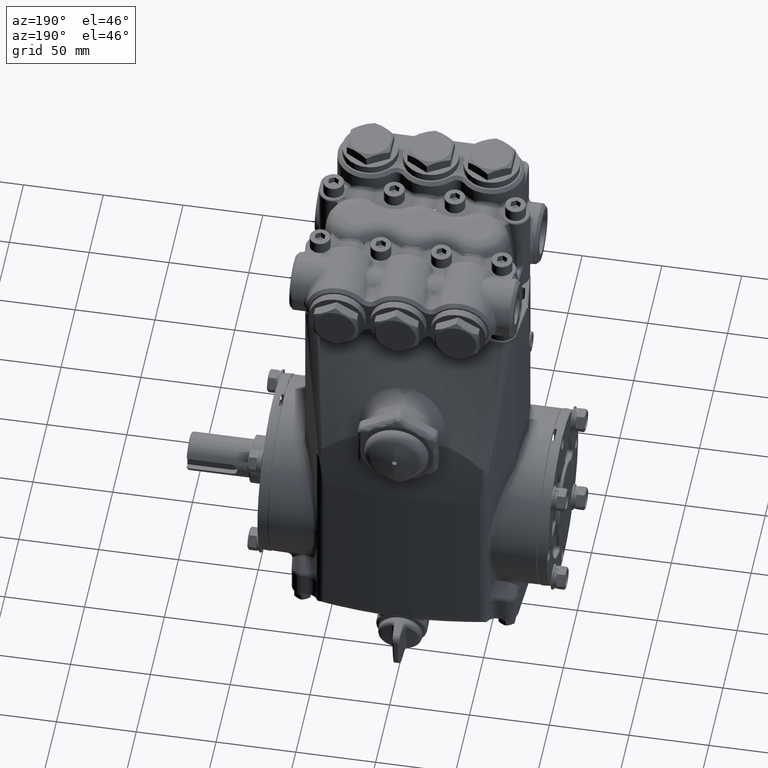
[diagram: clean part render]
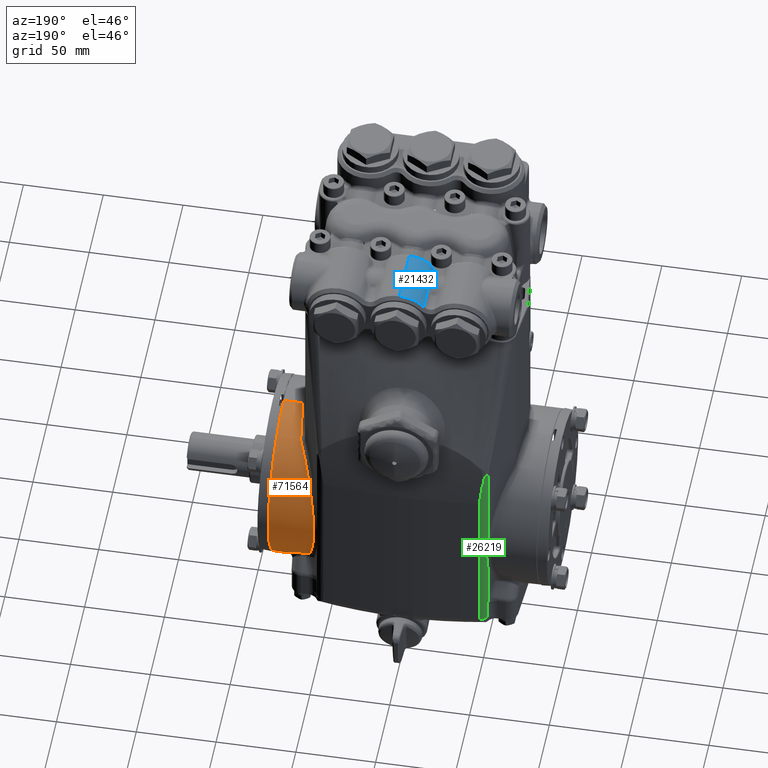
[diagram: same view with three faces highlighted in distinct colors, each labeled with its STEP entity id]
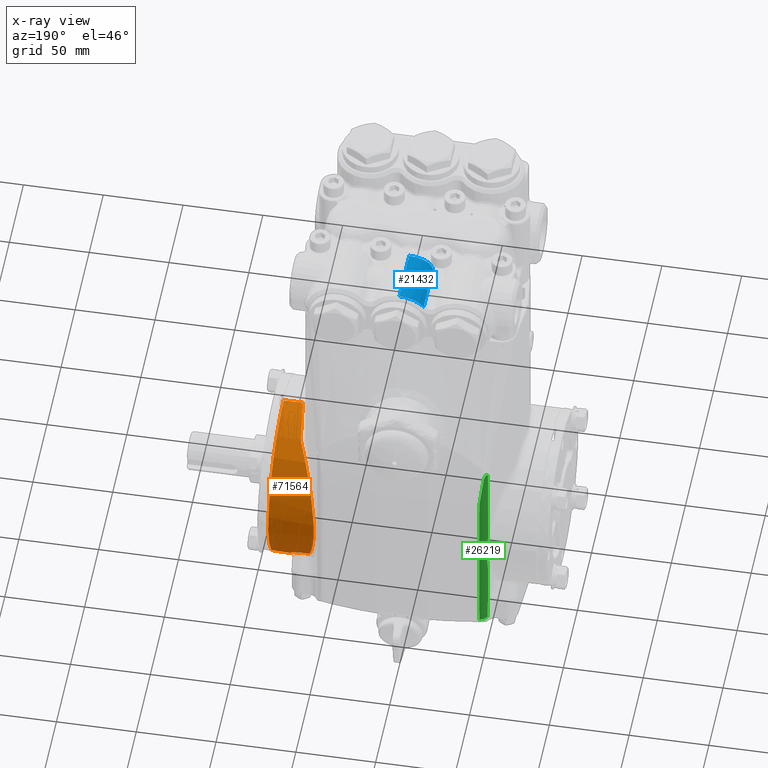
[diagram: x-ray of the same camera — body ghosted, the three highlighted faces saturated]
A machine part, auxiliary view with three faces highlighted in distinct colors.
The next image is the same camera in x-ray (body ghosted, the three faces saturated) — at least one of them is partly hidden behind the body in this view.
Their STEP definitions:

[orange] entity #71564 — the highlighted cylindrical surface (partial cylindrical patch) has radius 55 mm, axis along (1, -0, -0).
#38 = CARTESIAN_POINT ( 'NONE',  ( 3.001132935298741256, 0.006984045161048439698, -2.165345869940062062 ) ) ;
#232 = CARTESIAN_POINT ( 'NONE',  ( 2.699836573358002312, 1.036775677710985333, 1.901014353345519270 ) ) ;
#599 = EDGE_CURVE ( 'NONE', #85340, #52462, #86677, .T. ) ;
#951 = CARTESIAN_POINT ( 'NONE',  ( 2.699836573358002312, 1.036775677710985333, 1.901014353345519270 ) ) ;
#1635 = B_SPLINE_CURVE_WITH_KNOTS ( 'NONE', 3,
 ( #45546, #38, #66682, #102696 ),
 .UNSPECIFIED., .F., .F.,
 ( 4, 4 ),
 ( 2.547875105340935420E-18, 0.0002660209736205815679 ),
 .UNSPECIFIED. ) ;
#3262 = EDGE_CURVE ( 'NONE', #52462, #115533, #96984, .T. ) ;
#5080 = VERTEX_POINT ( 'NONE', #73179 ) ;
#5436 = CARTESIAN_POINT ( 'NONE',  ( 2.996620088869630827, 0.3358538298913014142, -2.139656249712679870 ) ) ;
#5470 = CARTESIAN_POINT ( 'NONE',  ( 2.714262431508347451, 0.9853388122601114407, 1.928177067225048225 ) ) ;
#5573 = ORIENTED_EDGE ( 'NONE', *, *, #91231, .F. ) ;
#5740 = CARTESIAN_POINT ( 'NONE',  ( 2.666696451043287563, 1.806973173080999251, -1.193160169334844589 ) ) ;
#6341 = CARTESIAN_POINT ( 'NONE',  ( 2.903593194520122100, 1.652876374660746661, -1.398892119377336041 ) ) ;
#6786 = CARTESIAN_POINT ( 'NONE',  ( 2.224920720426668552, 2.093148554814857842, 0.5545164605268523283 ) ) ;
#6943 = CARTESIAN_POINT ( 'NONE',  ( 2.915934412661236319, 1.621165426257023201, -1.435678530815410969 ) ) ;
#7573 = CARTESIAN_POINT ( 'NONE',  ( 2.920714650841377935, 1.587600093807528978, -1.472509870819574740 ) ) ;
#7665 = CARTESIAN_POINT ( 'NONE',  ( 2.334813571937218946, 1.852837202116557558, -1.120652135000211214 ) ) ;
#8404 = ORIENTED_EDGE ( 'NONE', *, *, #61658, .F. ) ;
#9927 = CYLINDRICAL_SURFACE ( 'NONE', #11624, 2.165354330708661568 ) ;
#10014 = VERTEX_POINT ( 'NONE', #76329 ) ;
#10378 = CARTESIAN_POINT ( 'NONE',  ( 2.247783690399701495, 2.042293606048640964, -0.7464800361690671071 ) ) ;
#11131 = ORIENTED_EDGE ( 'NONE', *, *, #17741, .F. ) ;
#11624 = AXIS2_PLACEMENT_3D ( 'NONE', #38829, #107915, #21820 ) ;
#12224 = CARTESIAN_POINT ( 'NONE',  ( 3.000905191768266089, 0.01046765692728673057, -2.165329029426523277 ) ) ;
#13058 = LINE ( 'NONE', #119220, #43264 ) ;
#13274 = CARTESIAN_POINT ( 'NONE',  ( 2.920714650841377935, 1.587600093807528978, -1.472509870819574740 ) ) ;
#13887 = CARTESIAN_POINT ( 'NONE',  ( 2.834916132250326903, -8.553836053367910872E-13, 2.165354330708661568 ) ) ;
#14270 = ORIENTED_EDGE ( 'NONE', *, *, #66631, .T. ) ;
#14403 = CARTESIAN_POINT ( 'NONE',  ( 2.834916132250326903, -8.553836053367910872E-13, 2.165354330708661568 ) ) ;
#14951 = ORIENTED_EDGE ( 'NONE', *, *, #21219, .F. ) ;
#16228 = CARTESIAN_POINT ( 'NONE',  ( 2.214137029036238324, 2.117135117970423863, 0.4639737199988274163 ) ) ;
#16826 = CARTESIAN_POINT ( 'NONE',  ( 2.180581225541741830, 2.165308281435589066, 0.04901070734122809497 ) ) ;
#16984 = CARTESIAN_POINT ( 'NONE',  ( 2.875645456564244640, 1.696808674284081775, -1.345404253422435081 ) ) ;
#17741 = EDGE_CURVE ( 'NONE', #115533, #53427, #86802, .T. ) ;
#18708 = CARTESIAN_POINT ( 'NONE',  ( 2.202693561820952439, 2.135036624589259802, 0.3728106239869881100 ) ) ;
#20185 = ORIENTED_EDGE ( 'NONE', *, *, #31273, .F. ) ;
#21219 = EDGE_CURVE ( 'NONE', #5080, #60437, #96821, .T. ) ;
#21820 = DIRECTION ( 'NONE',  ( 0.000000000000000000, 0.000000000000000000, 1.000000000000000000 ) ) ;
#23448 = LINE ( 'NONE', #108301, #109493 ) ;
#23588 = CARTESIAN_POINT ( 'NONE',  ( 2.699836573358002312, 1.036775677710985333, 1.901014353345519270 ) ) ;
#25299 = CARTESIAN_POINT ( 'NONE',  ( 2.374685763242076586, 1.829236654641229309, -1.158732504851491818 ) ) ;
#25527 = CARTESIAN_POINT ( 'NONE',  ( 2.996615589479274977, 0.4731062516763475112, -2.113551596670201427 ) ) ;
#25815 = CARTESIAN_POINT ( 'NONE',  ( 2.842123480178768258, 1.728912408571944503, -1.303736053716292531 ) ) ;
#26433 = CARTESIAN_POINT ( 'NONE',  ( 2.582376196092895704, 1.819240064059689299, -1.174372134108272236 ) ) ;
#26522 = CARTESIAN_POINT ( 'NONE',  ( 2.344246016133761046, 1.844723699014530816, -1.133922719474339980 ) ) ;
#26891 = CARTESIAN_POINT ( 'NONE',  ( 2.182914079590751122, 2.162387231284902622, -0.1157406669298135377 ) ) ;
#27363 = EDGE_CURVE ( 'NONE', #77119, #39141, #69695, .T. ) ;
#28145 = CARTESIAN_POINT ( 'NONE',  ( 2.202600983985220306, 2.135186560717966309, -0.3721468128045957169 ) ) ;
#28581 = ORIENTED_EDGE ( 'NONE', *, *, #72539, .F. ) ;
#29030 = ORIENTED_EDGE ( 'NONE', *, *, #27363, .F. ) ;
#29230 = CARTESIAN_POINT ( 'NONE',  ( 2.224920720426668996, 2.093148554814857842, -0.5545164605268522173 ) ) ;
#31273 = EDGE_CURVE ( 'NONE', #39141, #73210, #48234, .T. ) ;
#32413 = CARTESIAN_POINT ( 'NONE',  ( 2.833573044147181808, 0.02176847656630910219, 2.165244907844546152 ) ) ;
#33024 = CARTESIAN_POINT ( 'NONE',  ( 2.707236426691661535, 1.020315910558582173, 1.909991185221792120 ) ) ;
#34392 = CARTESIAN_POINT ( 'NONE',  ( 2.751391105441370222, 0.6854820936121004404, 2.081410122437167054 ) ) ;
#34650 = CARTESIAN_POINT ( 'NONE',  ( 2.895476968579367760, 1.668070233648332623, -1.380739355267364132 ) ) ;
#35350 = CARTESIAN_POINT ( 'NONE',  ( 2.408079295826049737, 1.821645022111501921, -1.170634117865167800 ) ) ;
#35552 = EDGE_CURVE ( 'NONE', #46220, #5080, #119132, .T. ) ;
#37360 =( BOUNDED_CURVE ( )  B_SPLINE_CURVE ( 3, ( #232, #87573, #39841, #95149 ),
 .UNSPECIFIED., .F., .F. ) 
 B_SPLINE_CURVE_WITH_KNOTS ( ( 4, 4 ),
 ( 2.070085784874226231, 2.882621878166205853 ),
 .UNSPECIFIED. ) 
 CURVE ( )  GEOMETRIC_REPRESENTATION_ITEM ( )  RATIONAL_B_SPLINE_CURVE ( ( 1.000000000000000000, 0.9457346828002772821, 0.9457346828002772821, 1.000000000000000000 ) ) 
 REPRESENTATION_ITEM ( '' )  );
#37907 = AXIS2_PLACEMENT_3D ( 'NONE', #80583, #118871, #109460 ) ;
#38196 = CARTESIAN_POINT ( 'NONE',  ( 2.180526785268474210, 2.165375858866640968, -0.02138746709008351038 ) ) ;
#38829 = CARTESIAN_POINT ( 'NONE',  ( -19685.03937007874265, 0.000000000000000000, 0.000000000000000000 ) ) ;
#39141 = VERTEX_POINT ( 'NONE', #86478 ) ;
#39841 = CARTESIAN_POINT ( 'NONE',  ( 2.294367569176432475, 1.938675363477264213, 1.137610670027403570 ) ) ;
#41358 = CARTESIAN_POINT ( 'NONE',  ( 2.940181541919657082, 1.309273501592581157, -1.772590252395337407 ) ) ;
#41737 = DIRECTION ( 'NONE',  ( 1.000000000000000000, -0.000000000000000000, -0.000000000000000000 ) ) ;
#42166 = CARTESIAN_POINT ( 'NONE',  ( 2.224920720426668552, 2.093148554814857842, 0.5545164605268523283 ) ) ;
#43264 = VECTOR ( 'NONE', #82166, 39.37007874015748143 ) ;
#43823 = CARTESIAN_POINT ( 'NONE',  ( 2.995616580941062423, 0.2435827851895652763, -2.152113865190802056 ) ) ;
#43988 = CARTESIAN_POINT ( 'NONE',  ( 2.834916132250361986, 0.007256158854866113193, 2.165354330708664232 ) ) ;
#44724 = CARTESIAN_POINT ( 'NONE',  ( 2.818533017741007729, 1.746310629392774150, -1.280332060359319568 ) ) ;
#44812 = CARTESIAN_POINT ( 'NONE',  ( 2.385249461896747025, 1.826132136985539889, -1.163618998964428775 ) ) ;
#45340 = CARTESIAN_POINT ( 'NONE',  ( 2.654874561816855660, 1.809369689380805113, -1.189518673336169563 ) ) ;
#45546 = CARTESIAN_POINT ( 'NONE',  ( 3.000905191768266089, 0.01046765692728673057, -2.165329029426523277 ) ) ;
#46050 = CARTESIAN_POINT ( 'NONE',  ( 2.420029408679309491, 1.820616516430447751, -1.172226461746846082 ) ) ;
#46220 = VERTEX_POINT ( 'NONE', #42166 ) ;
#46484 = ORIENTED_EDGE ( 'NONE', *, *, #108608, .F. ) ;
#48234 = B_SPLINE_CURVE_WITH_KNOTS ( 'NONE', 3,
 ( #63806, #100878, #33024, #23588 ),
 .UNSPECIFIED., .F., .F.,
 ( 4, 4 ),
 ( 3.469446951953614189E-18, 0.001522235697223477992 ),
 .UNSPECIFIED. ) ;
#52462 = VERTEX_POINT ( 'NONE', #13274 ) ;
#53270 = CARTESIAN_POINT ( 'NONE',  ( 2.791879429211051811, 0.3584923408687987201, 2.161859625411683528 ) ) ;
#53427 = VERTEX_POINT ( 'NONE', #12224 ) ;
#53538 = CARTESIAN_POINT ( 'NONE',  ( 2.630949183802644420, 1.813465316359295310, -1.183265352077683241 ) ) ;
#55213 = CARTESIAN_POINT ( 'NONE',  ( 2.182010245614104615, 2.163523631875809095, -0.09209756802802643305 ) ) ;
#55371 = CARTESIAN_POINT ( 'NONE',  ( 2.919519453647200891, 1.604688346922567899, -1.454086013169413993 ) ) ;
#60266 = VERTEX_POINT ( 'NONE', #84718 ) ;
#60437 = VERTEX_POINT ( 'NONE', #67717 ) ;
#60815 = CARTESIAN_POINT ( 'NONE',  ( 2.920714650841377935, 1.587600093807528978, -1.472509870819574740 ) ) ;
#61658 = EDGE_CURVE ( 'NONE', #84892, #77119, #76427, .T. ) ;
#62334 = CARTESIAN_POINT ( 'NONE',  ( 2.863472108935826377, 1.710160163005832956, -1.328358890287677729 ) ) ;
#63606 = EDGE_CURVE ( 'NONE', #115029, #85340, #111833, .T. ) ;
#63806 = CARTESIAN_POINT ( 'NONE',  ( 2.714262431508347451, 0.9853388122601114407, 1.928177067225048225 ) ) ;
#64142 = EDGE_CURVE ( 'NONE', #60266, #10014, #23448, .T. ) ;
#64179 = CARTESIAN_POINT ( 'NONE',  ( 2.618882594685502774, 1.815162649067177503, -1.180656669223874244 ) ) ;
#64575 = CARTESIAN_POINT ( 'NONE',  ( 2.432232454864653448, 1.820616516430446419, -1.172226461746799897 ) ) ;
#64787 = CARTESIAN_POINT ( 'NONE',  ( 2.810137086962422259, 1.751715151741702448, -1.272921970510207723 ) ) ;
#65505 = CARTESIAN_POINT ( 'NONE',  ( 2.327612382700216642, 1.864727696549315805, -1.100704317807756016 ) ) ;
#66499 = CARTESIAN_POINT ( 'NONE',  ( 2.190071999432462224, 2.153086051259655243, 0.2348026329366685871 ) ) ;
#66631 = EDGE_CURVE ( 'NONE', #84892, #93418, #13058, .T. ) ;
#66682 = CARTESIAN_POINT ( 'NONE',  ( 3.001247000493426853, 0.003491088892603810574, -2.165354330708661568 ) ) ;
#67288 = EDGE_CURVE ( 'NONE', #73210, #46220, #37360, .T. ) ;
#67717 = CARTESIAN_POINT ( 'NONE',  ( 2.327612382700216642, 1.864727696549315805, -1.100704317807756016 ) ) ;
#68439 = CARTESIAN_POINT ( 'NONE',  ( 2.992327056910538907, 0.5637264376050651338, -2.090686939994570004 ) ) ;
#69695 =( BOUNDED_CURVE ( )  B_SPLINE_CURVE ( 3, ( #80894, #53270, #34392, #5470 ),
 .UNSPECIFIED., .F., .F. ) 
 B_SPLINE_CURVE_WITH_KNOTS ( ( 4, 4 ),
 ( 1.580849574406080205, 2.043221746822086349 ),
 .UNSPECIFIED. ) 
 CURVE ( )  GEOMETRIC_REPRESENTATION_ITEM ( )  RATIONAL_B_SPLINE_CURVE ( ( 1.000000000000000000, 0.9822635394635154116, 0.9822635394635154116, 1.000000000000000000 ) ) 
 REPRESENTATION_ITEM ( '' )  );
#71453 = CARTESIAN_POINT ( 'NONE',  ( 3.000905191768266089, 0.01046765692728673057, -2.165329029426523277 ) ) ;
#71562 = CARTESIAN_POINT ( 'NONE',  ( 2.532464889193351887, 1.820616516430446863, -1.172226461746799009 ) ) ;
#71564 = ADVANCED_FACE ( 'NONE', ( #117317 ), #9927, .T. ) ;
#71682 = DIRECTION ( 'NONE',  ( 1.000000000000000000, -0.000000000000000000, -0.000000000000000000 ) ) ;
#71752 = CARTESIAN_POINT ( 'NONE',  ( 2.792530616634989471, 1.761970238058271576, -1.258688681146406863 ) ) ;
#71836 = CARTESIAN_POINT ( 'NONE',  ( 3.307086614166640182, 0.000000000000000000, 2.165354330708661568 ) ) ;
#72539 = EDGE_CURVE ( 'NONE', #10014, #93418, #118170, .T. ) ;
#72737 = ORIENTED_EDGE ( 'NONE', *, *, #35552, .F. ) ;
#73179 = CARTESIAN_POINT ( 'NONE',  ( 2.224920720426668996, 2.093148554814857842, -0.5545164605268522173 ) ) ;
#73210 = VERTEX_POINT ( 'NONE', #951 ) ;
#73292 = VECTOR ( 'NONE', #71682, 39.37007874015748143 ) ;
#74321 = CARTESIAN_POINT ( 'NONE',  ( 2.330330887586870237, 1.858680825696717331, -1.110948456377815363 ) ) ;
#76329 = CARTESIAN_POINT ( 'NONE',  ( 3.307086614166640182, -2.651794250122221246E-16, -2.165354330708661568 ) ) ;
#76427 = B_SPLINE_CURVE_WITH_KNOTS ( 'NONE', 3,
 ( #14403, #43988, #91702, #110533 ),
 .UNSPECIFIED., .F., .F.,
 ( 4, 4 ),
 ( 0.0005529193047624394834, 0.001105838609568417490 ),
 .UNSPECIFIED. ) ;
#76547 = CARTESIAN_POINT ( 'NONE',  ( 2.186613352208861993, 2.157628379374275429, 0.1885892275417958008 ) ) ;
#77119 = VERTEX_POINT ( 'NONE', #32413 ) ;
#78859 = CARTESIAN_POINT ( 'NONE',  ( 2.327612382700216642, 1.864727696549315805, -1.100704317807756016 ) ) ;
#79267 = EDGE_LOOP ( 'NONE', ( #82015, #5573, #11131, #106538, #96187, #92378, #46484, #14951, #72737, #106774, #20185, #29030, #8404, #14270, #28581 ) ) ;
#79486 = CARTESIAN_POINT ( 'NONE',  ( 2.282229834916867706, 1.965673774210779490, -0.9296893196579598673 ) ) ;
#80583 = CARTESIAN_POINT ( 'NONE',  ( 3.307086614166640182, 0.000000000000000000, 0.000000000000000000 ) ) ;
#80877 = CARTESIAN_POINT ( 'NONE',  ( 2.992327056910538907, 0.5637264376050651338, -2.090686939994570004 ) ) ;
#80894 = CARTESIAN_POINT ( 'NONE',  ( 2.833573044147181808, 0.02176847656630910219, 2.165244907844546152 ) ) ;
#82015 = ORIENTED_EDGE ( 'NONE', *, *, #64142, .F. ) ;
#82166 = DIRECTION ( 'NONE',  ( 1.000000000000000000, -0.000000000000000000, -0.000000000000000000 ) ) ;
#82407 = CARTESIAN_POINT ( 'NONE',  ( 2.722920638537827731, 1.792222520854177104, -1.215275574371438516 ) ) ;
#82716 = CARTESIAN_POINT ( 'NONE',  ( 2.995487386928054274, 0.5185418274592423771, -2.102870380195392297 ) ) ;
#83625 = CARTESIAN_POINT ( 'NONE',  ( 2.701115141882145299, 1.798870862651447133, -1.205370664415323700 ) ) ;
#84256 = CARTESIAN_POINT ( 'NONE',  ( 2.557632326301072734, 1.820616516430408671, -1.172226461746761927 ) ) ;
#84349 = CARTESIAN_POINT ( 'NONE',  ( 2.432232454864653448, 1.820616516430446419, -1.172226461746799897 ) ) ;
#84718 = CARTESIAN_POINT ( 'NONE',  ( 3.001247000493425965, -5.474055705097304527E-14, -2.165354330708661568 ) ) ;
#84721 = CARTESIAN_POINT ( 'NONE',  ( 2.180817177939173401, 2.165017101369969499, -0.04491568208714365185 ) ) ;
#84892 = VERTEX_POINT ( 'NONE', #13887 ) ;
#85340 = VERTEX_POINT ( 'NONE', #71562 ) ;
#85592 = CARTESIAN_POINT ( 'NONE',  ( 2.355791910466821015, 1.837328447188444569, -1.145863962184987095 ) ) ;
#85963 = CARTESIAN_POINT ( 'NONE',  ( 2.214111242110439193, 2.117192476782161936, -0.4637572061125144751 ) ) ;
#86478 = CARTESIAN_POINT ( 'NONE',  ( 2.714262431508347451, 0.9853388122601114407, 1.928177067225048225 ) ) ;
#86677 = B_SPLINE_CURVE_WITH_KNOTS ( 'NONE', 3,
 ( #92448, #84256, #26433, #64179, #53538, #45340, #5740, #83625, #82407, #111894, #121322, #121945, #71752, #64787, #44724, #120714, #25815, #62334, #16984, #110668, #34650, #6341, #100646, #6943, #55371, #7573 ),
 .UNSPECIFIED., .F., .F.,
 ( 4, 2, 2, 2, 2, 2, 2, 2, 2, 2, 2, 2, 4 ),
 ( 0.000000000000000000, 0.001891821109857257316, 0.002837731664785884782, 0.003783642219714512030, 0.005675463329571802523, 0.006621373884500461431, 0.007567284439429121205, 0.008513194994357780113, 0.009459105549286438153, 0.01135092665914376811, 0.01229683721407244003, 0.01324274776900111195, 0.01513456887885848180 ),
 .UNSPECIFIED. ) ;
#86802 = B_SPLINE_CURVE_WITH_KNOTS ( 'NONE', 3,
 ( #111603, #82716, #25527, #119793, #5436, #43823, #110369, #119164, #90297, #71453 ),
 .UNSPECIFIED., .F., .F.,
 ( 4, 2, 2, 2, 4 ),
 ( 0.000000000000000000, 0.003546287326658007465, 0.007092574653316014929, 0.01063886197997401979, 0.01418514930663202118 ),
 .UNSPECIFIED. ) ;
#87573 = CARTESIAN_POINT ( 'NONE',  ( 2.461756253539471029, 1.566346528792579962, 1.612196871741579773 ) ) ;
#87835 = CARTESIAN_POINT ( 'NONE',  ( 2.964687734594000812, 0.9588978268965991925, -1.984134134183584752 ) ) ;
#90297 = CARTESIAN_POINT ( 'NONE',  ( 2.997849561794700968, 0.05720719989911267345, -2.165103080624237286 ) ) ;
#91231 = EDGE_CURVE ( 'NONE', #53427, #60266, #1635, .T. ) ;
#91702 = CARTESIAN_POINT ( 'NONE',  ( 2.834471511779911523, 0.01451231771058760812, 2.165317858263889228 ) ) ;
#92378 = ORIENTED_EDGE ( 'NONE', *, *, #63606, .F. ) ;
#92448 = CARTESIAN_POINT ( 'NONE',  ( 2.532464889193351887, 1.820616516430446863, -1.172226461746799009 ) ) ;
#93418 = VERTEX_POINT ( 'NONE', #71836 ) ;
#93511 = CARTESIAN_POINT ( 'NONE',  ( 2.186450764309912476, 2.157841920206465591, -0.1862736558526659481 ) ) ;
#94134 = CARTESIAN_POINT ( 'NONE',  ( 2.181865193312993334, 2.163739559798199430, 0.09569345636149928502 ) ) ;
#95000 = CARTESIAN_POINT ( 'NONE',  ( 2.347859870804390070, 1.842123431487330043, -1.138139405278453919 ) ) ;
#95149 = CARTESIAN_POINT ( 'NONE',  ( 2.224920720426668552, 2.093148554814857842, 0.5545164605268523283 ) ) ;
#96187 = ORIENTED_EDGE ( 'NONE', *, *, #599, .F. ) ;
#96821 =( BOUNDED_CURVE ( )  B_SPLINE_CURVE ( 3, ( #29230, #10378, #79486, #78859 ),
 .UNSPECIFIED., .F., .F. ) 
 B_SPLINE_CURVE_WITH_KNOTS ( ( 4, 4 ),
 ( 3.400563429013380379, 3.674831595706583798 ),
 .UNSPECIFIED. ) 
 CURVE ( )  GEOMETRIC_REPRESENTATION_ITEM ( )  RATIONAL_B_SPLINE_CURVE ( ( 1.000000000000000000, 0.9937412320302076996, 0.9937412320302076996, 1.000000000000000000 ) ) 
 REPRESENTATION_ITEM ( '' )  );
#96984 =( BOUNDED_CURVE ( )  B_SPLINE_CURVE ( 3, ( #60815, #41358, #87835, #80877 ),
 .UNSPECIFIED., .F., .F. ) 
 B_SPLINE_CURVE_WITH_KNOTS ( ( 4, 4 ),
 ( 3.889398702551730924, 4.449015564267806866 ),
 .UNSPECIFIED. ) 
 CURVE ( )  GEOMETRIC_REPRESENTATION_ITEM ( )  RATIONAL_B_SPLINE_CURVE ( ( 1.000000000000000000, 0.9740722412601059421, 0.9740722412601059421, 1.000000000000000000 ) ) 
 REPRESENTATION_ITEM ( '' )  );
#99950 = CARTESIAN_POINT ( 'NONE',  ( -19685.03937007874265, 1.820616516430447085, -1.172226461746799009 ) ) ;
#100646 = CARTESIAN_POINT ( 'NONE',  ( 2.907126062173174486, 1.645029633680164860, -1.408113838877049329 ) ) ;
#100878 = CARTESIAN_POINT ( 'NONE',  ( 2.712053289720472993, 1.003180171440650970, 1.919059759503227269 ) ) ;
#102696 = CARTESIAN_POINT ( 'NONE',  ( 3.001247000493425965, -5.474055705097304527E-14, -2.165354330708661568 ) ) ;
#103566 = CARTESIAN_POINT ( 'NONE',  ( 2.189920097867191995, 2.153294297498582033, -0.2329633583571052435 ) ) ;
#103820 = CARTESIAN_POINT ( 'NONE',  ( 2.360136675470979828, 1.835108037747382737, -1.149413945969933071 ) ) ;
#106538 = ORIENTED_EDGE ( 'NONE', *, *, #3262, .F. ) ;
#106774 = ORIENTED_EDGE ( 'NONE', *, *, #67288, .F. ) ;
#107915 = DIRECTION ( 'NONE',  ( 1.000000000000000000, -0.000000000000000000, -0.000000000000000000 ) ) ;
#108301 = CARTESIAN_POINT ( 'NONE',  ( -19685.03937007874265, -2.651794250122221246E-16, -2.165354330708661568 ) ) ;
#108608 = EDGE_CURVE ( 'NONE', #60437, #115029, #112030, .T. ) ;
#109460 = DIRECTION ( 'NONE',  ( 0.000000000000000000, 0.000000000000000000, -1.000000000000000000 ) ) ;
#109493 = VECTOR ( 'NONE', #41737, 39.37007874015748143 ) ;
#110369 = CARTESIAN_POINT ( 'NONE',  ( 2.995192722002654406, 0.1972203405201242987, -2.156859757434875569 ) ) ;
#110533 = CARTESIAN_POINT ( 'NONE',  ( 2.833573044147181808, 0.02176847656630910219, 2.165244907844546152 ) ) ;
#110668 = CARTESIAN_POINT ( 'NONE',  ( 2.890897829059087876, 1.675425255221527410, -1.371800939592950463 ) ) ;
#111603 = CARTESIAN_POINT ( 'NONE',  ( 2.992327056910538907, 0.5637264376050651338, -2.090686939994570004 ) ) ;
#111833 = LINE ( 'NONE', #99950, #73292 ) ;
#111894 = CARTESIAN_POINT ( 'NONE',  ( 2.753963914065131302, 1.780296878712746667, -1.232619823086091637 ) ) ;
#112030 = B_SPLINE_CURVE_WITH_KNOTS ( 'NONE', 3,
 ( #65505, #74321, #7665, #26522, #95000, #85592, #103820, #123894, #25299, #44812, #112595, #35350, #46050, #84349 ),
 .UNSPECIFIED., .F., .F.,
 ( 4, 2, 2, 2, 2, 2, 4 ),
 ( 0.000000000000000000, 0.0009293632568907302582, 0.001394044885336096200, 0.001858726513781462251, 0.002323408142226828302, 0.002788089770672194136, 0.003717453027562906288 ),
 .UNSPECIFIED. ) ;
#112595 = CARTESIAN_POINT ( 'NONE',  ( 2.390773553364281323, 1.824823179282988539, -1.165668736654657867 ) ) ;
#115029 = VERTEX_POINT ( 'NONE', #64575 ) ;
#115533 = VERTEX_POINT ( 'NONE', #68439 ) ;
#117317 = FACE_OUTER_BOUND ( 'NONE', #79267, .T. ) ;
#118170 = CIRCLE ( 'NONE', #37907, 2.165354330708661568 ) ;
#118871 = DIRECTION ( 'NONE',  ( 1.000000000000000000, -0.000000000000000000, -0.000000000000000000 ) ) ;
#119132 = B_SPLINE_CURVE_WITH_KNOTS ( 'NONE', 3,
 ( #6786, #16228, #18708, #66499, #76547, #94134, #16826, #38196, #84721, #55213, #26891, #93511, #103566, #28145, #85963, #123033 ),
 .UNSPECIFIED., .F., .F.,
 ( 4, 2, 2, 2, 2, 2, 2, 4 ),
 ( 0.000000000000000000, 0.007095812614449549353, 0.01064371892167432013, 0.01419162522889909350, 0.01596557838251147499, 0.01773953153612386341, 0.02128743784334863332, 0.02838325045779818007 ),
 .UNSPECIFIED. ) ;
#119164 = CARTESIAN_POINT ( 'NONE',  ( 2.996285488333642721, 0.1040549884975184580, -2.163356751746155382 ) ) ;
#119220 = CARTESIAN_POINT ( 'NONE',  ( -19685.03937007874265, 0.000000000000000000, 2.165354330708661568 ) ) ;
#119793 = CARTESIAN_POINT ( 'NONE',  ( 2.997196904585581745, 0.3817623974804327247, -2.131944499519720981 ) ) ;
#120714 = CARTESIAN_POINT ( 'NONE',  ( 2.834510793166090892, 1.734923225546766368, -1.295720803480591155 ) ) ;
#121322 = CARTESIAN_POINT ( 'NONE',  ( 2.764059797206227298, 1.775976632164363300, -1.238842095935893672 ) ) ;
#121945 = CARTESIAN_POINT ( 'NONE',  ( 2.783320116348022122, 1.766820788075095461, -1.251865423870408778 ) ) ;
#123033 = CARTESIAN_POINT ( 'NONE',  ( 2.224920720426668996, 2.093148554814857842, -0.5545164605268522173 ) ) ;
#123894 = CARTESIAN_POINT ( 'NONE',  ( 2.369612889744431516, 1.831046827813259670, -1.155872589756385294 ) ) ;

[blue] entity #21432 — the highlighted cylindrical surface (edge-blend (fillet) strip) has radius 20.5 mm, axis along (-0, 1, 0).
#108 = AXIS2_PLACEMENT_3D ( 'NONE', #88259, #40530, #31061 ) ;
#5633 = ORIENTED_EDGE ( 'NONE', *, *, #115080, .T. ) ;
#6298 = ORIENTED_EDGE ( 'NONE', *, *, #98645, .T. ) ;
#6304 = ORIENTED_EDGE ( 'NONE', *, *, #105994, .T. ) ;
#6347 = CARTESIAN_POINT ( 'NONE',  ( -0.5309892794676761563, 1.676563346090022888, 8.836162760957883222 ) ) ;
#6505 = CYLINDRICAL_SURFACE ( 'NONE', #123364, 0.8070866141732280230 ) ;
#8155 = DIRECTION ( 'NONE',  ( -0.000000000000000000, 1.000000000000000000, 1.226136909130372365E-16 ) ) ;
#8362 = FACE_OUTER_BOUND ( 'NONE', #77699, .T. ) ;
#8389 = ORIENTED_EDGE ( 'NONE', *, *, #109833, .T. ) ;
#11290 = CARTESIAN_POINT ( 'NONE',  ( -0.5528345293031815544, 1.554534384202156838, 8.816379717365615321 ) ) ;
#11452 = CARTESIAN_POINT ( 'NONE',  ( -0.6015668443404945664, 1.267524659551527266, 8.766404199475067216 ) ) ;
#15472 = CARTESIAN_POINT ( 'NONE',  ( -0.6015668443404946775, 1.417322834645668772, 8.766404199475067216 ) ) ;
#15617 = CARTESIAN_POINT ( 'NONE',  ( -0.6013586536976994745, 2.122012141192681334, 8.766636873104440397 ) ) ;
#15779 = CARTESIAN_POINT ( 'NONE',  ( -0.5291595590037140306, 1.704570658354283452, 8.837756364517625585 ) ) ;
#16384 = CARTESIAN_POINT ( 'NONE',  ( -0.6013586536976994745, 2.046764800969919307, 8.766636873104440397 ) ) ;
#16547 = DIRECTION ( 'NONE',  ( -0.000000000000000000, 1.000000000000000000, 1.226136909130372365E-16 ) ) ;
#18020 = CARTESIAN_POINT ( 'NONE',  ( -0.5308643389411663582, 1.225094526586499866, 8.836380117163194825 ) ) ;
#18234 = CIRCLE ( 'NONE', #108, 0.8070866141732280230 ) ;
#19142 = LINE ( 'NONE', #112161, #119813 ) ;
#20377 = CIRCLE ( 'NONE', #100685, 0.8070866141732280230 ) ;
#20461 = EDGE_CURVE ( 'NONE', #40375, #103809, #34192, .T. ) ;
#21432 = ADVANCED_FACE ( 'NONE', ( #8362 ), #6505, .T. ) ;
#27012 = CARTESIAN_POINT ( 'NONE',  ( 0.000000000000000000, 1.194032563966385796, 8.228346456692914757 ) ) ;
#28003 = VERTEX_POINT ( 'NONE', #98070 ) ;
#31061 = DIRECTION ( 'NONE',  ( 0.000000000000000000, 0.000000000000000000, 1.000000000000000000 ) ) ;
#32889 = VECTOR ( 'NONE', #98159, 39.37007874015748143 ) ;
#33623 = CARTESIAN_POINT ( 'NONE',  ( -0.6013586536976994745, 2.578740157480315265, 8.766636873104440397 ) ) ;
#34192 = LINE ( 'NONE', #80691, #81212 ) ;
#35270 = CARTESIAN_POINT ( 'NONE',  ( -0.5376985480595618538, 1.621430878422189581, 8.830253144592049352 ) ) ;
#35398 = EDGE_CURVE ( 'NONE', #113367, #28003, #41641, .T. ) ;
#35715 = VERTEX_POINT ( 'NONE', #15472 ) ;
#37288 = CARTESIAN_POINT ( 'NONE',  ( 0.000000000000000000, 2.122012141192681334, 8.228346456692914757 ) ) ;
#40151 = ORIENTED_EDGE ( 'NONE', *, *, #41228, .T. ) ;
#40245 = CARTESIAN_POINT ( 'NONE',  ( -0.5643006824788241449, 1.515463947862661698, 8.805393268694059472 ) ) ;
#40375 = VERTEX_POINT ( 'NONE', #49916 ) ;
#40530 = DIRECTION ( 'NONE',  ( 0.000000000000000000, -1.000000000000000000, 0.000000000000000000 ) ) ;
#41228 = EDGE_CURVE ( 'NONE', #35715, #123306, #19142, .T. ) ;
#41641 = LINE ( 'NONE', #15617, #32889 ) ;
#44731 = CARTESIAN_POINT ( 'NONE',  ( -0.5323542506829309628, 1.662688887059105669, 8.834971053328915858 ) ) ;
#49450 = CARTESIAN_POINT ( 'NONE',  ( -0.5132695334270801490, 1.210527361900709087, 8.851304131563267674 ) ) ;
#49916 = CARTESIAN_POINT ( 'NONE',  ( 0.000000000000000000, 1.194032563966385574, 9.035433070866142558 ) ) ;
#51773 = VERTEX_POINT ( 'NONE', #88391 ) ;
#55263 = ORIENTED_EDGE ( 'NONE', *, *, #35398, .T. ) ;
#55378 = CARTESIAN_POINT ( 'NONE',  ( -0.5359016205164741642, 1.829269063112153981, 8.831839482041026201 ) ) ;
#56003 = CARTESIAN_POINT ( 'NONE',  ( -0.5627486386681807007, 1.949941729770812149, 8.807162907993546952 ) ) ;
#59081 = CARTESIAN_POINT ( 'NONE',  ( -0.5684734073501562790, 1.502741813084216060, 8.801291208166464486 ) ) ;
#66036 = CARTESIAN_POINT ( 'NONE',  ( -0.5380895767793321127, 1.842867328248395165, 8.829894846535982111 ) ) ;
#67656 = CARTESIAN_POINT ( 'NONE',  ( -0.5663348009352839885, 1.249836314572044804, 8.803879840898900966 ) ) ;
#73620 = CARTESIAN_POINT ( 'NONE',  ( -0.5429278153106029681, 1.594411981825440083, 8.825589714351096404 ) ) ;
#77699 = EDGE_LOOP ( 'NONE', ( #8389, #100302, #6304, #55263, #6298, #40151, #5633 ) ) ;
#80085 = DIRECTION ( 'NONE',  ( -0.000000000000000000, 1.000000000000000000, 1.226136909130372365E-16 ) ) ;
#80405 = B_SPLINE_CURVE_WITH_KNOTS ( 'NONE', 3,
 ( #105360, #87756, #67656, #87125, #18020, #49450, #115384, #114141 ),
 .UNSPECIFIED., .F., .F.,
 ( 4, 2, 2, 4 ),
 ( 3.555125210177727942E-17, 0.002058985437993263775, 0.003088478156989878098, 0.004117970875986491988 ),
 .UNSPECIFIED. ) ;
#80691 = CARTESIAN_POINT ( 'NONE',  ( 0.000000000000000000, 2.122012141192681334, 9.035433070866142558 ) ) ;
#81212 = VECTOR ( 'NONE', #80085, 39.37007874015748143 ) ;
#83585 = DIRECTION ( 'NONE',  ( 0.000000000000000000, 1.692413147294446709E-16, -1.000000000000000000 ) ) ;
#87125 = CARTESIAN_POINT ( 'NONE',  ( -0.5397248588323754204, 1.231715911052514656, 8.828539862698908891 ) ) ;
#87756 = CARTESIAN_POINT ( 'NONE',  ( -0.5841090849638187477, 1.259599657393126959, 8.785922567825602769 ) ) ;
#87970 = CARTESIAN_POINT ( 'NONE',  ( -0.5913187132958824810, 1.440902063943234834, 8.777861958304109535 ) ) ;
#88259 = CARTESIAN_POINT ( 'NONE',  ( 0.000000000000000000, 2.578740157480315265, 8.228346456692914757 ) ) ;
#88391 = CARTESIAN_POINT ( 'NONE',  ( -0.4960906445821554045, 1.194032563966385574, 8.864964768663019967 ) ) ;
#91430 = B_SPLINE_CURVE_WITH_KNOTS ( 'NONE', 3,
 ( #16384, #103106, #56003, #120721, #94297, #66036, #55378, #104361, #111284, #121328, #15779, #6347, #44731, #35270, #73620, #11290, #95542, #40245, #59081, #105579, #87970, #115605 ),
 .UNSPECIFIED., .F., .F.,
 ( 4, 2, 2, 2, 2, 2, 2, 2, 2, 2, 4 ),
 ( 0.000000000000000000, 0.004248894843398638710, 0.005311118554248298387, 0.006373342265097958065, 0.008497789686797289563, 0.009560013397646952710, 0.01062223710849661933, 0.01274668453019596817, 0.01380890824104566254, 0.01487113195189535518, 0.01699557937359472484 ),
 .UNSPECIFIED. ) ;
#94297 = CARTESIAN_POINT ( 'NONE',  ( -0.5432452436743006041, 1.869923073730488161, 8.825242983057904667 ) ) ;
#95542 = CARTESIAN_POINT ( 'NONE',  ( -0.5564858801814396294, 1.541339517245682300, 8.812933275433675107 ) ) ;
#98070 = CARTESIAN_POINT ( 'NONE',  ( -0.6013586536976994745, 2.046764800969919307, 8.766636873104440397 ) ) ;
#98159 = DIRECTION ( 'NONE',  ( 0.000000000000000000, -1.000000000000000000, -1.226136909130372365E-16 ) ) ;
#98645 = EDGE_CURVE ( 'NONE', #28003, #35715, #91430, .T. ) ;
#100302 = ORIENTED_EDGE ( 'NONE', *, *, #20461, .T. ) ;
#100685 = AXIS2_PLACEMENT_3D ( 'NONE', #27012, #8155, #83585 ) ;
#103106 = CARTESIAN_POINT ( 'NONE',  ( -0.5808986450365012377, 1.999634326063099099, 8.789494057419858564 ) ) ;
#103809 = VERTEX_POINT ( 'NONE', #116977 ) ;
#104361 = CARTESIAN_POINT ( 'NONE',  ( -0.5305909704096926083, 1.788254880078113063, 8.836527620369393432 ) ) ;
#105360 = CARTESIAN_POINT ( 'NONE',  ( -0.6015668443404945664, 1.267524659551527266, 8.766404199475067216 ) ) ;
#105579 = CARTESIAN_POINT ( 'NONE',  ( -0.5816536002223235968, 1.465166913003231208, 8.788010189158354635 ) ) ;
#105994 = EDGE_CURVE ( 'NONE', #103809, #113367, #18234, .T. ) ;
#109833 = EDGE_CURVE ( 'NONE', #51773, #40375, #20377, .T. ) ;
#111284 = CARTESIAN_POINT ( 'NONE',  ( -0.5287270464118235536, 1.760619478671750615, 8.838130446047106403 ) ) ;
#112161 = CARTESIAN_POINT ( 'NONE',  ( -0.6015668443404946775, 2.122012141192681334, 8.766404199475067216 ) ) ;
#113367 = VERTEX_POINT ( 'NONE', #33623 ) ;
#113914 = DIRECTION ( 'NONE',  ( 0.000000000000000000, 0.000000000000000000, 1.000000000000000000 ) ) ;
#114141 = CARTESIAN_POINT ( 'NONE',  ( -0.4960906445821554045, 1.194032563966385574, 8.864964768663019967 ) ) ;
#115080 = EDGE_CURVE ( 'NONE', #123306, #51773, #80405, .T. ) ;
#115384 = CARTESIAN_POINT ( 'NONE',  ( -0.5045462107103793059, 1.202582821905342270, 8.858375691390209639 ) ) ;
#115605 = CARTESIAN_POINT ( 'NONE',  ( -0.6015668443404946775, 1.417322834645668772, 8.766404199475067216 ) ) ;
#116977 = CARTESIAN_POINT ( 'NONE',  ( 0.000000000000000000, 2.578740157480315265, 9.035433070866142558 ) ) ;
#119813 = VECTOR ( 'NONE', #123461, 39.37007874015748143 ) ;
#120721 = CARTESIAN_POINT ( 'NONE',  ( -0.5462263187409309717, 1.883431992291308310, 8.822523171553427801 ) ) ;
#121328 = CARTESIAN_POINT ( 'NONE',  ( -0.5287016415507864719, 1.718694364456397894, 8.838152472672366144 ) ) ;
#123306 = VERTEX_POINT ( 'NONE', #11452 ) ;
#123364 = AXIS2_PLACEMENT_3D ( 'NONE', #37288, #16547, #113914 ) ;
#123461 = DIRECTION ( 'NONE',  ( 0.000000000000000000, -1.000000000000000000, -1.226136909130372365E-16 ) ) ;

[green] entity #26219 — the highlighted cylindrical surface (edge-blend (fillet) strip) has radius 6 mm, axis along (-0, -0, -1).
#230 = ORIENTED_EDGE ( 'NONE', *, *, #84061, .F. ) ;
#2713 = VERTEX_POINT ( 'NONE', #29231 ) ;
#3319 = VERTEX_POINT ( 'NONE', #44447 ) ;
#3885 = CARTESIAN_POINT ( 'NONE',  ( -2.112332445108491719, 2.169782267457217362, -1.639881990315795735 ) ) ;
#4110 = CARTESIAN_POINT ( 'NONE',  ( -2.042128518427935191, 2.256277578573904652, 2.718144917080189238 ) ) ;
#4127 = B_SPLINE_CURVE_WITH_KNOTS ( 'NONE', 3,
 ( #90223, #92077, #14784, #61961, #72619, #24830, #61348, #14169, #62584, #53160, #52538, #33034, #101518, #13546, #4110, #82648, #120953, #110906, #119713, #63196, #43744, #71376, #109667, #23598 ),
 .UNSPECIFIED., .F., .F.,
 ( 4, 2, 2, 2, 2, 2, 2, 2, 2, 2, 2, 4 ),
 ( 1.354418056594359806E-16, 0.0001400526928893572386, 0.0002801053857785790061, 0.0005602107715570279079, 0.0008403161573354767013, 0.001120421543113925712, 0.001680632314670824599, 0.002240843086227723054, 0.003361264629341516492, 0.004481686172455309931, 0.006722529258682891605, 0.008963372344910474146 ),
 .UNSPECIFIED. ) ;
#4150 = VERTEX_POINT ( 'NONE', #89619 ) ;
#4639 = CARTESIAN_POINT ( 'NONE',  ( -2.116276716150627291, 2.160989868001935932, 2.740471938754866610 ) ) ;
#4886 = EDGE_CURVE ( 'NONE', #3319, #46172, #69126, .T. ) ;
#5329 = LINE ( 'NONE', #53754, #104824 ) ;
#5627 = CARTESIAN_POINT ( 'NONE',  ( -2.001576419903768222, 2.281137488307392491, 2.453091225448980950 ) ) ;
#7097 = EDGE_CURVE ( 'NONE', #46332, #9673, #5329, .T. ) ;
#8534 = CARTESIAN_POINT ( 'NONE',  ( -2.086677526913855107, 2.211777125167479152, -0.04814809800561649367 ) ) ;
#8582 = CARTESIAN_POINT ( 'NONE',  ( -2.109290464651675023, 2.175913905943367865, 6.535433070866142558 ) ) ;
#9231 = DIRECTION ( 'NONE',  ( 0.000000000000000000, 0.000000000000000000, -1.000000000000000000 ) ) ;
#9673 = VERTEX_POINT ( 'NONE', #82179 ) ;
#9812 = EDGE_CURVE ( 'NONE', #113564, #2713, #18635, .T. ) ;
#10532 = CARTESIAN_POINT ( 'NONE',  ( -2.116276716150627291, 2.160989868001935932, 2.740471938754866610 ) ) ;
#10796 = EDGE_CURVE ( 'NONE', #3319, #109957, #77107, .T. ) ;
#11641 = CARTESIAN_POINT ( 'NONE',  ( -2.116271851958289929, 2.161001277764797557, 0.5847628129192260493 ) ) ;
#13546 = CARTESIAN_POINT ( 'NONE',  ( -2.044042974569964422, 2.254811023945215265, 2.725045619764708160 ) ) ;
#14169 = CARTESIAN_POINT ( 'NONE',  ( -2.062086601925706031, 2.239253727802635208, 2.765920558912713823 ) ) ;
#14699 = CARTESIAN_POINT ( 'NONE',  ( -2.078564588323855045, 2.221814779649408766, 2.770839816914288711 ) ) ;
#14784 = CARTESIAN_POINT ( 'NONE',  ( -2.076282451187894562, 2.224456795412221410, 2.772079941569544292 ) ) ;
#15357 = EDGE_CURVE ( 'NONE', #2713, #109957, #44171, .T. ) ;
#16875 = CARTESIAN_POINT ( 'NONE',  ( -1.978219032163935021, 2.292400702220907416, 2.245753118094478307 ) ) ;
#17960 = CARTESIAN_POINT ( 'NONE',  ( -2.116271851958289929, 2.161001277764797557, -0.5847628129192260493 ) ) ;
#18127 = CARTESIAN_POINT ( 'NONE',  ( -1.953303414656376358, 2.299672513645310445, 2.038186688167588301 ) ) ;
#18635 = LINE ( 'NONE', #8582, #73309 ) ;
#21364 = AXIS2_PLACEMENT_3D ( 'NONE', #51000, #107514, #40329 ) ;
#23370 = CARTESIAN_POINT ( 'NONE',  ( -2.109290464651675023, 2.175913905943367865, -1.745659289848646711 ) ) ;
#23598 = CARTESIAN_POINT ( 'NONE',  ( -2.001576419903768222, 2.281137488307392491, 2.453091225448980950 ) ) ;
#23700 = EDGE_CURVE ( 'NONE', #80628, #46172, #35295, .T. ) ;
#24830 = CARTESIAN_POINT ( 'NONE',  ( -2.068838043163499396, 2.232556946402840303, 2.771777561726754602 ) ) ;
#26219 = ADVANCED_FACE ( 'NONE', ( #47320 ), #115111, .T. ) ;
#26770 = CARTESIAN_POINT ( 'NONE',  ( -2.101292665568112117, 2.190714598775922006, -0.3910148900793649074 ) ) ;
#26990 = VECTOR ( 'NONE', #9231, 39.37007874015748143 ) ;
#29231 = CARTESIAN_POINT ( 'NONE',  ( -2.109290464651675023, 2.175913905943367865, -1.745659289848646711 ) ) ;
#32717 = CARTESIAN_POINT ( 'NONE',  ( -2.116271851958289929, 2.161001277764797557, 0.5847628129192260493 ) ) ;
#33034 = CARTESIAN_POINT ( 'NONE',  ( -2.050756631551896358, 2.249406943919852075, 2.745144315170664928 ) ) ;
#34208 = CARTESIAN_POINT ( 'NONE',  ( -2.093446728250653699, 2.202984832081895217, 2.760677852182992442 ) ) ;
#35295 = LINE ( 'NONE', #43528, #91947 ) ;
#38691 = CARTESIAN_POINT ( 'NONE',  ( -2.101317209965678945, 2.190672658031928677, 0.3912894314575499077 ) ) ;
#40202 = ORIENTED_EDGE ( 'NONE', *, *, #9812, .T. ) ;
#40318 = ORIENTED_EDGE ( 'NONE', *, *, #7097, .F. ) ;
#40329 = DIRECTION ( 'NONE',  ( 1.000000000000000000, -1.156482317317871725E-15, 0.000000000000000000 ) ) ;
#41175 = CARTESIAN_POINT ( 'NONE',  ( -2.086370469878879863, 2.212679244017106583, 2.765750601190421598 ) ) ;
#43528 = CARTESIAN_POINT ( 'NONE',  ( -2.116271851958289929, 2.161001277764797557, 6.535433070866142558 ) ) ;
#43744 = CARTESIAN_POINT ( 'NONE',  ( -2.015790412330845882, 2.273721709548610193, 2.568543275779415325 ) ) ;
#44171 = B_SPLINE_CURVE_WITH_KNOTS ( 'NONE', 3,
 ( #23370, #51694, #89993, #3885, #80575, #54769 ),
 .UNSPECIFIED., .F., .F.,
 ( 4, 2, 4 ),
 ( 0.000000000000000000, 0.002024289250661331398, 0.004048578501322662795 ),
 .UNSPECIFIED. ) ;
#44447 = CARTESIAN_POINT ( 'NONE',  ( -2.116271851958289929, 2.161001277764797557, -0.5847628129192260493 ) ) ;
#46172 = VERTEX_POINT ( 'NONE', #32717 ) ;
#46332 = VERTEX_POINT ( 'NONE', #86038 ) ;
#47320 = FACE_OUTER_BOUND ( 'NONE', #118156, .T. ) ;
#47426 = CIRCLE ( 'NONE', #21364, 0.2362204724409448231 ) ;
#48545 = DIRECTION ( 'NONE',  ( -0.000000000000000000, -0.000000000000000000, -1.000000000000000000 ) ) ;
#50604 = CARTESIAN_POINT ( 'NONE',  ( -2.113930270725144833, 2.166493841535388931, 2.742919209524317559 ) ) ;
#50861 = CARTESIAN_POINT ( 'NONE',  ( -2.116271851958289929, 2.161001277764797557, -1.587724641053002816 ) ) ;
#51000 = CARTESIAN_POINT ( 'NONE',  ( -1.898974115021533349, 2.068363244957601488, -2.204724409448818534 ) ) ;
#51694 = CARTESIAN_POINT ( 'NONE',  ( -2.109290464651674579, 2.175913905943367421, -1.719089931335290311 ) ) ;
#52538 = CARTESIAN_POINT ( 'NONE',  ( -2.055094735695073282, 2.245648675309992015, 2.754572333181207533 ) ) ;
#53160 = CARTESIAN_POINT ( 'NONE',  ( -2.056675083315292696, 2.244249771103278057, 2.757637742570313577 ) ) ;
#53754 = CARTESIAN_POINT ( 'NONE',  ( -1.927892502559932941, 2.302806923614977741, 6.535433070866142558 ) ) ;
#54769 = CARTESIAN_POINT ( 'NONE',  ( -2.116271851958289929, 2.161001277764797557, -1.587724641053002816 ) ) ;
#56102 = EDGE_CURVE ( 'NONE', #89806, #4150, #4127, .T. ) ;
#56340 = CARTESIAN_POINT ( 'NONE',  ( -2.090595900782994843, 2.206522735288858339, -0.1956138115206920158 ) ) ;
#60819 = EDGE_CURVE ( 'NONE', #89806, #80628, #121585, .T. ) ;
#61348 = CARTESIAN_POINT ( 'NONE',  ( -2.066404119104499060, 2.235025880973747991, 2.770172673854234269 ) ) ;
#61961 = CARTESIAN_POINT ( 'NONE',  ( -2.073849398235707575, 2.227177847209326877, 2.772596879190641239 ) ) ;
#62584 = CARTESIAN_POINT ( 'NONE',  ( -2.060152828828950344, 2.241068449557142905, 2.763279289110920356 ) ) ;
#63196 = CARTESIAN_POINT ( 'NONE',  ( -2.019633783578418385, 2.271509565890101445, 2.597329159800878084 ) ) ;
#64664 = ORIENTED_EDGE ( 'NONE', *, *, #15357, .T. ) ;
#65124 = CARTESIAN_POINT ( 'NONE',  ( -2.092883160433760992, 2.203363349500512491, -0.2445666500271244659 ) ) ;
#66167 = CARTESIAN_POINT ( 'NONE',  ( -1.898974115021533349, 2.068363244957601488, 6.535433070866142558 ) ) ;
#67667 = CARTESIAN_POINT ( 'NONE',  ( -2.116271851958289929, 2.161001277764797557, 6.535433070866142558 ) ) ;
#69126 = B_SPLINE_CURVE_WITH_KNOTS ( 'NONE', 3,
 ( #17960, #112844, #26770, #65124, #56340, #94639, #8534, #85216, #116561, #38691, #95253, #11641 ),
 .UNSPECIFIED., .F., .F.,
 ( 4, 2, 2, 2, 2, 4 ),
 ( 1.734723475976806902E-18, 0.007478700152479044599, 0.01121805022871856516, 0.01495740030495808399, 0.02243610045743712686, 0.02991480060991617146 ),
 .UNSPECIFIED. ) ;
#70072 = CARTESIAN_POINT ( 'NONE',  ( -2.111350010579472247, 2.171960448266391897, 2.745480503865430855 ) ) ;
#70246 = AXIS2_PLACEMENT_3D ( 'NONE', #66167, #48545, #104492 ) ;
#71376 = CARTESIAN_POINT ( 'NONE',  ( -2.008333519438293635, 2.277787854213165986, 2.510901416468469982 ) ) ;
#72619 = CARTESIAN_POINT ( 'NONE',  ( -2.072566904048899872, 2.228578596024202163, 2.772589680741690099 ) ) ;
#73203 = DIRECTION ( 'NONE',  ( 0.000000000000000000, 0.000000000000000000, 1.000000000000000000 ) ) ;
#73309 = VECTOR ( 'NONE', #95303, 39.37007874015748143 ) ;
#74744 = CARTESIAN_POINT ( 'NONE',  ( -1.927892502559934051, 2.302806923614977741, 1.830708661417320915 ) ) ;
#75320 = CARTESIAN_POINT ( 'NONE',  ( -2.078564588323855045, 2.221814779649408766, 2.770839816914288711 ) ) ;
#75526 = EDGE_CURVE ( 'NONE', #9673, #4150, #113242, .T. ) ;
#77107 = LINE ( 'NONE', #67667, #26990 ) ;
#78151 = ORIENTED_EDGE ( 'NONE', *, *, #23700, .F. ) ;
#80575 = CARTESIAN_POINT ( 'NONE',  ( -2.114101956550686001, 2.166091124204481577, -1.613715875363296748 ) ) ;
#80628 = VERTEX_POINT ( 'NONE', #10532 ) ;
#80708 = CARTESIAN_POINT ( 'NONE',  ( -2.102880983442067198, 2.187768918881022540, 2.753086199699649406 ) ) ;
#82179 = CARTESIAN_POINT ( 'NONE',  ( -1.927892502559934051, 2.302806923614977741, 1.830708661417320915 ) ) ;
#82648 = CARTESIAN_POINT ( 'NONE',  ( -2.036825807742913330, 2.260239496707491469, 2.697173814893521371 ) ) ;
#83037 = DIRECTION ( 'NONE',  ( 0.000000000000000000, 0.000000000000000000, -1.000000000000000000 ) ) ;
#84061 = EDGE_CURVE ( 'NONE', #113564, #46332, #47426, .T. ) ;
#85216 = CARTESIAN_POINT ( 'NONE',  ( -2.086707598539881747, 2.211737761022640747, 0.09904423188056026006 ) ) ;
#86038 = CARTESIAN_POINT ( 'NONE',  ( -1.927892502559933607, 2.302806923614975521, -2.204724409448818978 ) ) ;
#89619 = CARTESIAN_POINT ( 'NONE',  ( -2.001576419903768222, 2.281137488307392491, 2.453091225448980950 ) ) ;
#89806 = VERTEX_POINT ( 'NONE', #75320 ) ;
#89993 = CARTESIAN_POINT ( 'NONE',  ( -2.109926526012765535, 2.174696097074243273, -1.692544818830644227 ) ) ;
#90223 = CARTESIAN_POINT ( 'NONE',  ( -2.078564588323855045, 2.221814779649408766, 2.770839816914288711 ) ) ;
#91947 = VECTOR ( 'NONE', #83037, 39.37007874015748143 ) ;
#92077 = CARTESIAN_POINT ( 'NONE',  ( -2.077446149002673437, 2.223123733955110648, 2.771569007965855924 ) ) ;
#94639 = CARTESIAN_POINT ( 'NONE',  ( -2.087489560671296651, 2.210732062816269661, -0.09740959030995412216 ) ) ;
#95253 = CARTESIAN_POINT ( 'NONE',  ( -2.108999738648207334, 2.178059215170680130, 0.4881792137723592329 ) ) ;
#95303 = DIRECTION ( 'NONE',  ( 0.000000000000000000, 0.000000000000000000, 1.000000000000000000 ) ) ;
#101016 = ORIENTED_EDGE ( 'NONE', *, *, #60819, .F. ) ;
#101518 = CARTESIAN_POINT ( 'NONE',  ( -2.048365045746574520, 2.251366245253230147, 2.738540015315996001 ) ) ;
#101944 = CARTESIAN_POINT ( 'NONE',  ( -2.109290464651675023, 2.175913905943367865, -2.204724409448818534 ) ) ;
#103058 = ORIENTED_EDGE ( 'NONE', *, *, #10796, .F. ) ;
#104492 = DIRECTION ( 'NONE',  ( -1.000000000000000000, 0.000000000000000000, 0.000000000000000000 ) ) ;
#104824 = VECTOR ( 'NONE', #73203, 39.37007874015748143 ) ;
#107514 = DIRECTION ( 'NONE',  ( -0.000000000000000000, -0.000000000000000000, -1.000000000000000000 ) ) ;
#108148 = ORIENTED_EDGE ( 'NONE', *, *, #56102, .T. ) ;
#108777 = ORIENTED_EDGE ( 'NONE', *, *, #4886, .T. ) ;
#109667 = CARTESIAN_POINT ( 'NONE',  ( -2.004834771363223744, 2.279566271958115120, 2.482014854761620093 ) ) ;
#109957 = VERTEX_POINT ( 'NONE', #50861 ) ;
#110210 = CARTESIAN_POINT ( 'NONE',  ( -2.105833752788412117, 2.182577919191674543, 2.750555192226245893 ) ) ;
#110906 = CARTESIAN_POINT ( 'NONE',  ( -2.028613975324909724, 2.265857106439762347, 2.654582151308443994 ) ) ;
#112844 = CARTESIAN_POINT ( 'NONE',  ( -2.108993779746398456, 2.178073192754592213, -0.4881000714159500209 ) ) ;
#113242 = B_SPLINE_CURVE_WITH_KNOTS ( 'NONE', 3,
 ( #74744, #18127, #16875, #5627 ),
 .UNSPECIFIED., .F., .F.,
 ( 4, 4 ),
 ( -0.0001264911079878683277, 0.01580325867421138869 ),
 .UNSPECIFIED. ) ;
#113293 = ORIENTED_EDGE ( 'NONE', *, *, #75526, .F. ) ;
#113564 = VERTEX_POINT ( 'NONE', #101944 ) ;
#115111 = CYLINDRICAL_SURFACE ( 'NONE', #70246, 0.2362204724409448231 ) ;
#116561 = CARTESIAN_POINT ( 'NONE',  ( -2.090127161283387824, 2.207513643817882620, 0.1967239155464763634 ) ) ;
#118156 = EDGE_LOOP ( 'NONE', ( #103058, #108777, #78151, #101016, #108148, #113293, #40318, #230, #40202, #64664 ) ) ;
#119713 = CARTESIAN_POINT ( 'NONE',  ( -2.026254588777409271, 2.267377215652688349, 2.640296931459234830 ) ) ;
#120953 = CARTESIAN_POINT ( 'NONE',  ( -2.033907743866129270, 2.262278779429293785, 2.683011636872602690 ) ) ;
#121585 = B_SPLINE_CURVE_WITH_KNOTS ( 'NONE', 3,
 ( #14699, #41175, #34208, #80708, #110210, #70072, #50604, #4639 ),
 .UNSPECIFIED., .F., .F.,
 ( 4, 2, 2, 4 ),
 ( 0.006197228679374548743, 0.007185694159532395389, 0.007679926899611316110, 0.008174159639690236831 ),
 .UNSPECIFIED. ) ;